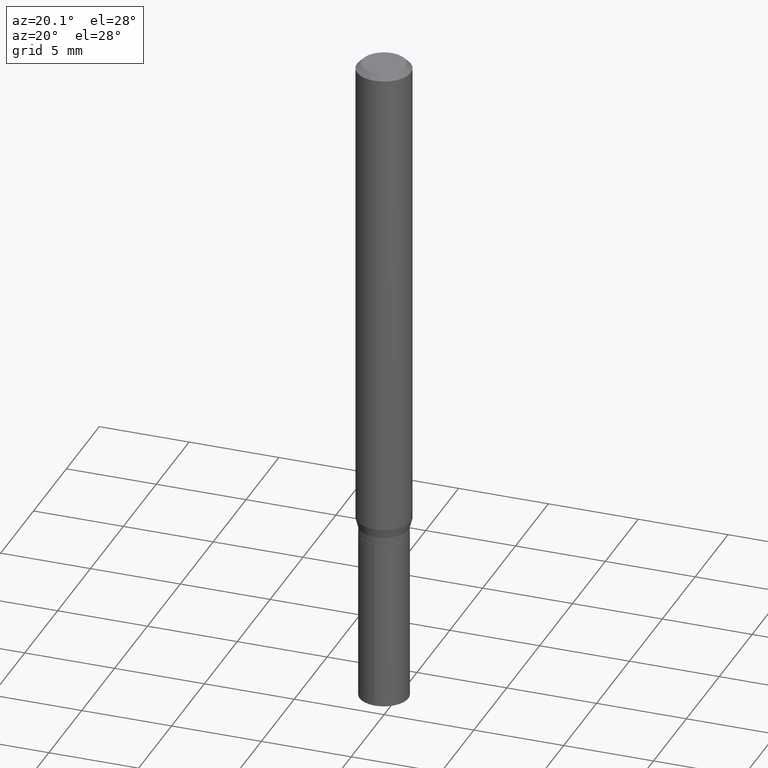
[diagram: clean part render]
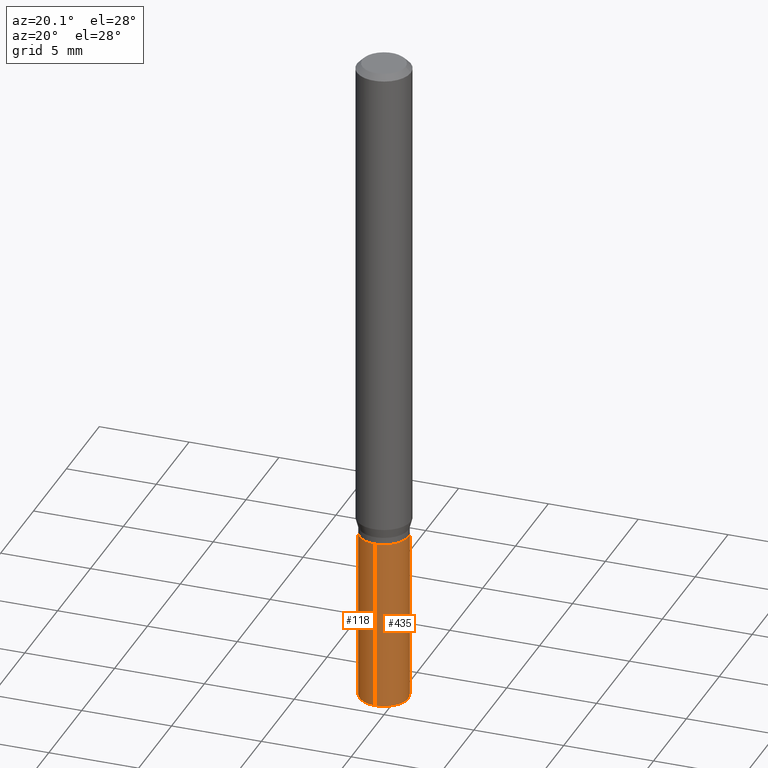
[diagram: same view with one multi-face feature highlighted, each face labeled with its STEP entity id]
A machine part, auxiliary view. The highlighted faces form ONE feature: a constant-radius fillet chain: 2 tangent blend faces with common blend radius 1.3551 mm. The faces share edges in the B-rep.
Their STEP definitions:
[1] entity #118 (Cylinder):
#10 = CARTESIAN_POINT ( 'NONE',  ( 3.790745495280494029E-16, 0.05334999999999485987, -1.471222486437431476 ) ) ;
#12 = DIRECTION ( 'NONE',  ( -6.982962677686265133E-15, -1.000000000000000000, 2.560307397998372008E-15 ) ) ;
#29 = DIRECTION ( 'NONE',  ( -2.445458899330790108E-29, 3.491495526022433205E-15, 1.000000000000000000 ) ) ;
#51 = VERTEX_POINT ( 'NONE', #65 ) ;
#62 = CYLINDRICAL_SURFACE ( 'NONE', #450, 0.05335000000000000159 ) ;
#65 = CARTESIAN_POINT ( 'NONE',  ( 3.790745495280493536E-16, 0.05334999999999616438, -1.094500000000000028 ) ) ;
#76 = CARTESIAN_POINT ( 'NONE',  ( -3.725410588545263790E-16, -0.05335000000000515025, -1.471222486437430810 ) ) ;
#84 = CARTESIAN_POINT ( 'NONE',  ( -3.725410588545355495E-16, -0.05335000000000382492, -1.094499999999999806 ) ) ;
#100 = LINE ( 'NONE', #211, #413 ) ;
#101 = EDGE_CURVE ( 'NONE', #332, #51, #100, .T. ) ;
#107 = CARTESIAN_POINT ( 'NONE',  ( 3.597824965406070746E-29, -5.136751201312159950E-15, -1.471222486437431254 ) ) ;
#110 = ORIENTED_EDGE ( 'NONE', *, *, #417, .T. ) ;
#112 = DIRECTION ( 'NONE',  ( -2.445458899330790108E-29, 3.491495526022433205E-15, 1.000000000000000000 ) ) ;
#118 = ADVANCED_FACE ( 'NONE', ( #126 ), #62, .T. ) ;
#126 = FACE_OUTER_BOUND ( 'NONE', #292, .T. ) ;
#135 = CIRCLE ( 'NONE', #214, 0.05335000000000000159 ) ;
#147 = LINE ( 'NONE', #84, #259 ) ;
#192 = DIRECTION ( 'NONE',  ( -2.445458899330790108E-29, 3.491495526022433205E-15, 1.000000000000000000 ) ) ;
#202 = ORIENTED_EDGE ( 'NONE', *, *, #101, .F. ) ;
#211 = CARTESIAN_POINT ( 'NONE',  ( 3.790745495280401338E-16, 0.05334999999999617826, -1.094500000000000028 ) ) ;
#214 = AXIS2_PLACEMENT_3D ( 'NONE', #387, #192, #12 ) ;
#240 = VERTEX_POINT ( 'NONE', #76 ) ;
#259 = VECTOR ( 'NONE', #273, 39.37007874015748143 ) ;
#273 = DIRECTION ( 'NONE',  ( -2.445458899330790108E-29, 3.491495526022433599E-15, 1.000000000000000000 ) ) ;
#284 = DIRECTION ( 'NONE',  ( -2.445458899330790108E-29, 3.491495526022433599E-15, 1.000000000000000000 ) ) ;
#286 = DIRECTION ( 'NONE',  ( -6.982962677686265133E-15, -1.000000000000000000, 2.560307397998372008E-15 ) ) ;
#292 = EDGE_LOOP ( 'NONE', ( #202, #110, #429, #327 ) ) ;
#294 = VERTEX_POINT ( 'NONE', #485 ) ;
#313 = EDGE_CURVE ( 'NONE', #240, #294, #147, .T. ) ;
#327 = ORIENTED_EDGE ( 'NONE', *, *, #442, .F. ) ;
#332 = VERTEX_POINT ( 'NONE', #10 ) ;
#351 = AXIS2_PLACEMENT_3D ( 'NONE', #107, #112, #423 ) ;
#387 = CARTESIAN_POINT ( 'NONE',  ( 2.676565608369631794E-29, -3.821426325363822773E-15, -1.094499999999999806 ) ) ;
#405 = CARTESIAN_POINT ( 'NONE',  ( 2.676565608369631794E-29, -3.821426325363822773E-15, -1.094499999999999806 ) ) ;
#413 = VECTOR ( 'NONE', #284, 39.37007874015748143 ) ;
#417 = EDGE_CURVE ( 'NONE', #332, #240, #464, .T. ) ;
#423 = DIRECTION ( 'NONE',  ( -6.982962677686265133E-15, -1.000000000000000000, 5.120614795996744016E-15 ) ) ;
#429 = ORIENTED_EDGE ( 'NONE', *, *, #313, .T. ) ;
#442 = EDGE_CURVE ( 'NONE', #51, #294, #135, .T. ) ;
#450 = AXIS2_PLACEMENT_3D ( 'NONE', #405, #29, #286 ) ;
#464 = CIRCLE ( 'NONE', #351, 0.05335000000000000159 ) ;
#485 = CARTESIAN_POINT ( 'NONE',  ( -3.725410588545355495E-16, -0.05335000000000382492, -1.094499999999999806 ) ) ;
[2] entity #435 (Cylinder):
#10 = CARTESIAN_POINT ( 'NONE',  ( 3.790745495280494029E-16, 0.05334999999999485987, -1.471222486437431476 ) ) ;
#16 = AXIS2_PLACEMENT_3D ( 'NONE', #367, #170, #321 ) ;
#17 = AXIS2_PLACEMENT_3D ( 'NONE', #201, #283, #206 ) ;
#47 = FACE_OUTER_BOUND ( 'NONE', #138, .T. ) ;
#51 = VERTEX_POINT ( 'NONE', #65 ) ;
#65 = CARTESIAN_POINT ( 'NONE',  ( 3.790745495280493536E-16, 0.05334999999999616438, -1.094500000000000028 ) ) ;
#76 = CARTESIAN_POINT ( 'NONE',  ( -3.725410588545263790E-16, -0.05335000000000515025, -1.471222486437430810 ) ) ;
#78 = CARTESIAN_POINT ( 'NONE',  ( 2.676565608369631794E-29, -3.821426325363822773E-15, -1.094499999999999806 ) ) ;
#84 = CARTESIAN_POINT ( 'NONE',  ( -3.725410588545355495E-16, -0.05335000000000382492, -1.094499999999999806 ) ) ;
#100 = LINE ( 'NONE', #211, #413 ) ;
#101 = EDGE_CURVE ( 'NONE', #332, #51, #100, .T. ) ;
#104 = EDGE_CURVE ( 'NONE', #240, #332, #285, .T. ) ;
#138 = EDGE_LOOP ( 'NONE', ( #207, #193, #169, #396 ) ) ;
#139 = EDGE_CURVE ( 'NONE', #294, #51, #194, .T. ) ;
#144 = AXIS2_PLACEMENT_3D ( 'NONE', #78, #231, #187 ) ;
#147 = LINE ( 'NONE', #84, #259 ) ;
#169 = ORIENTED_EDGE ( 'NONE', *, *, #139, .F. ) ;
#170 = DIRECTION ( 'NONE',  ( -2.445458899330790108E-29, 3.491495526022433205E-15, 1.000000000000000000 ) ) ;
#187 = DIRECTION ( 'NONE',  ( -6.982962677686265133E-15, -1.000000000000000000, 2.560307397998372008E-15 ) ) ;
#193 = ORIENTED_EDGE ( 'NONE', *, *, #101, .T. ) ;
#194 = CIRCLE ( 'NONE', #16, 0.05335000000000000159 ) ;
#201 = CARTESIAN_POINT ( 'NONE',  ( 3.597824965406070746E-29, -5.136751201312159950E-15, -1.471222486437431254 ) ) ;
#206 = DIRECTION ( 'NONE',  ( -6.982962677686265133E-15, -1.000000000000000000, 5.120614795996744016E-15 ) ) ;
#207 = ORIENTED_EDGE ( 'NONE', *, *, #104, .T. ) ;
#211 = CARTESIAN_POINT ( 'NONE',  ( 3.790745495280401338E-16, 0.05334999999999617826, -1.094500000000000028 ) ) ;
#231 = DIRECTION ( 'NONE',  ( -2.445458899330790108E-29, 3.491495526022433205E-15, 1.000000000000000000 ) ) ;
#240 = VERTEX_POINT ( 'NONE', #76 ) ;
#259 = VECTOR ( 'NONE', #273, 39.37007874015748143 ) ;
#273 = DIRECTION ( 'NONE',  ( -2.445458899330790108E-29, 3.491495526022433599E-15, 1.000000000000000000 ) ) ;
#283 = DIRECTION ( 'NONE',  ( -2.445458899330790108E-29, 3.491495526022433205E-15, 1.000000000000000000 ) ) ;
#284 = DIRECTION ( 'NONE',  ( -2.445458899330790108E-29, 3.491495526022433599E-15, 1.000000000000000000 ) ) ;
#285 = CIRCLE ( 'NONE', #17, 0.05335000000000000159 ) ;
#294 = VERTEX_POINT ( 'NONE', #485 ) ;
#313 = EDGE_CURVE ( 'NONE', #240, #294, #147, .T. ) ;
#321 = DIRECTION ( 'NONE',  ( -6.982962677686265133E-15, -1.000000000000000000, 2.560307397998372008E-15 ) ) ;
#332 = VERTEX_POINT ( 'NONE', #10 ) ;
#367 = CARTESIAN_POINT ( 'NONE',  ( 2.676565608369631794E-29, -3.821426325363822773E-15, -1.094499999999999806 ) ) ;
#396 = ORIENTED_EDGE ( 'NONE', *, *, #313, .F. ) ;
#413 = VECTOR ( 'NONE', #284, 39.37007874015748143 ) ;
#416 = CYLINDRICAL_SURFACE ( 'NONE', #144, 0.05335000000000000159 ) ;
#435 = ADVANCED_FACE ( 'NONE', ( #47 ), #416, .T. ) ;
#485 = CARTESIAN_POINT ( 'NONE',  ( -3.725410588545355495E-16, -0.05335000000000382492, -1.094499999999999806 ) ) ;